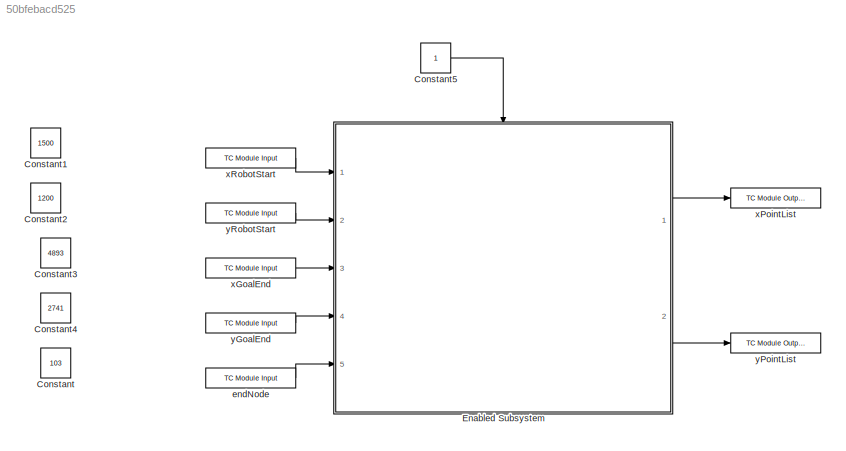
MODEL slx_50bfebacd525
KIND model
CONFIG AbsTol = auto
CONFIG EnableMultiTasking = off
CONFIG FixedStep = 1
CONFIG MaxStep = auto
CONFIG MinStep = auto
CONFIG RelTol = 1e-3
CONFIG SampleTimeConstraint = Unconstrained
CONFIG SolverName = ode1
CONFIG StartTime = 0.0
CONFIG StopTime = inf
BLOCK [Constant] Constant
  Value = 103
BLOCK [Constant] Constant1
  Value = 1500
BLOCK [Constant] Constant2
  Value = 1200
BLOCK [Constant] Constant3
  Value = 4893
BLOCK [Constant] Constant4
  Value = 2741
BLOCK [Constant] Constant5
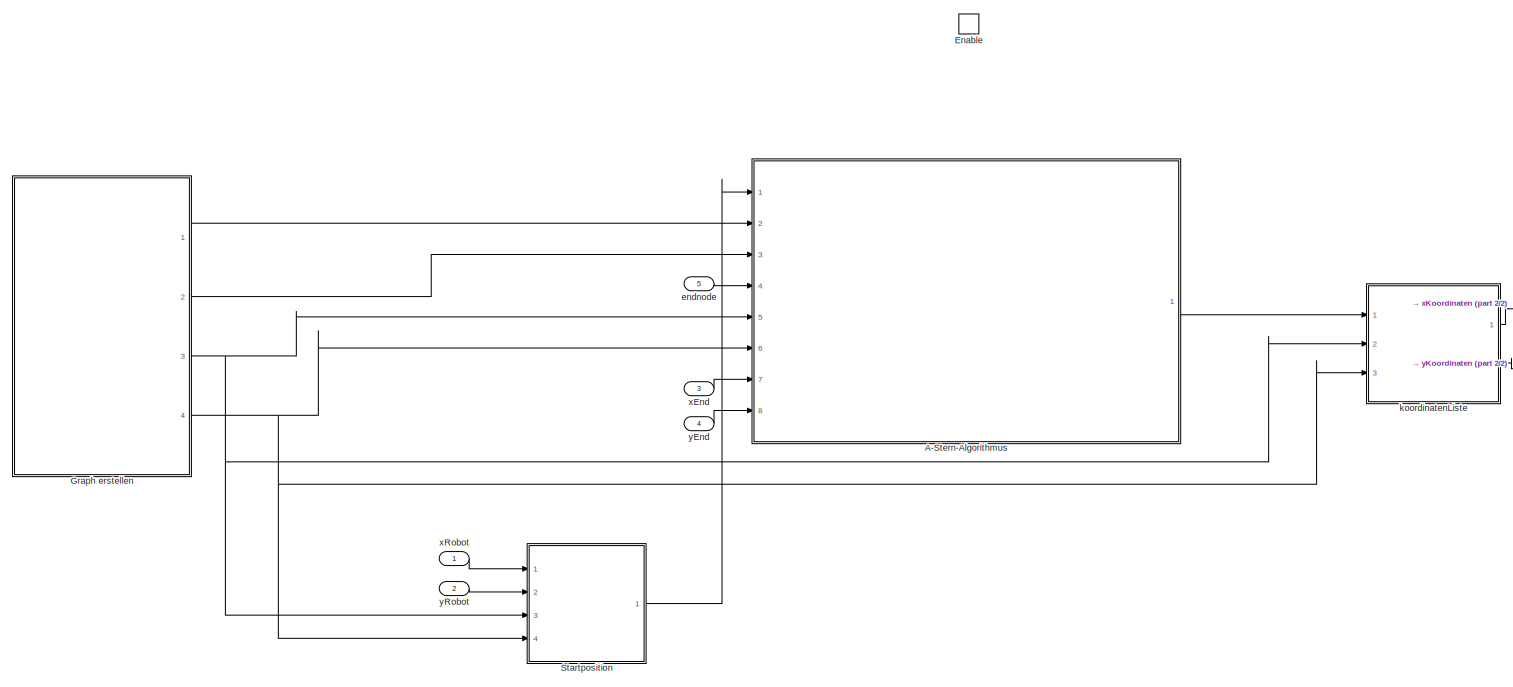
[diagram: Enabled Subsystem - part 1/2, most of the canvas]
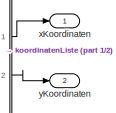
[diagram: Enabled Subsystem - part 2/2, middle right region]
BLOCK [SubSystem] Enabled Subsystem
  Ports = [5, 2, 1]
  RequestExecContextInheritance = off
  TreatAsAtomicUnit = on
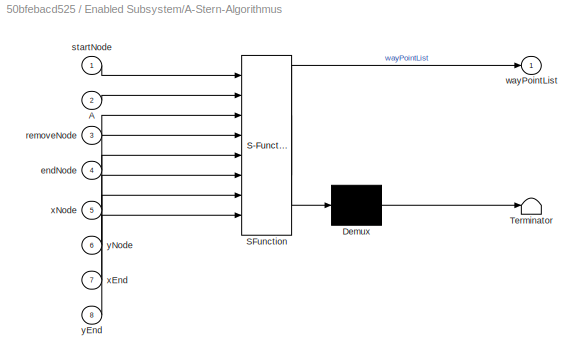
BLOCK [SubSystem] Enabled Subsystem/A-Stern-Algorithmus
  ErrorFcn = Stateflow.Translate.translate
  PermitHierarchicalResolution = ExplicitOnly
  Ports = [8, 1]
  RequestExecContextInheritance = off
  SFBlockType = MATLAB Function
  TreatAsAtomicUnit = on
BLOCK [Demux] Enabled Subsystem/A-Stern-Algorithmus/ Demux 
  Outputs = 1
  Ports = [1, 1]
BLOCK [S-Function] Enabled Subsystem/A-Stern-Algorithmus/ SFunction 
  EnableBusSupport = on
  FunctionName = sf_sfun
  PortCounts = [8 2]
  Ports = [8, 2]
  SFcnIsStateOwnerBlock = off
  SFunctionDeploymentMode = off
  Tag = Stateflow S-Function 2
BLOCK [Terminator] Enabled Subsystem/A-Stern-Algorithmus/ Terminator 
BLOCK [Inport] Enabled Subsystem/A-Stern-Algorithmus/A
  Port = 2
BLOCK [Inport] Enabled Subsystem/A-Stern-Algorithmus/endNode
  Port = 4
BLOCK [Inport] Enabled Subsystem/A-Stern-Algorithmus/removeNode
  Port = 3
BLOCK [Inport] Enabled Subsystem/A-Stern-Algorithmus/startNode
BLOCK [Outport] Enabled Subsystem/A-Stern-Algorithmus/wayPointList
BLOCK [Inport] Enabled Subsystem/A-Stern-Algorithmus/xEnd
  Port = 7
BLOCK [Inport] Enabled Subsystem/A-Stern-Algorithmus/xNode
  Port = 5
BLOCK [Inport] Enabled Subsystem/A-Stern-Algorithmus/yEnd
  Port = 8
BLOCK [Inport] Enabled Subsystem/A-Stern-Algorithmus/yNode
  Port = 6
BLOCK [EnablePort] Enabled Subsystem/Enable
  Ports = []
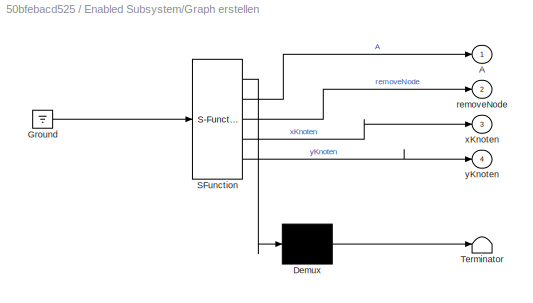
BLOCK [SubSystem] Enabled Subsystem/Graph erstellen
  ErrorFcn = Stateflow.Translate.translate
  PermitHierarchicalResolution = ExplicitOnly
  Ports = [0, 4]
  RequestExecContextInheritance = off
  SFBlockType = MATLAB Function
  TreatAsAtomicUnit = on
BLOCK [Demux] Enabled Subsystem/Graph erstellen/ Demux 
  Outputs = 1
  Ports = [1, 1]
BLOCK [Ground] Enabled Subsystem/Graph erstellen/ Ground 
BLOCK [S-Function] Enabled Subsystem/Graph erstellen/ SFunction 
  EnableBusSupport = on
  FunctionName = sf_sfun
  PortCounts = [1 5]
  Ports = [1, 5]
  SFcnIsStateOwnerBlock = off
  SFunctionDeploymentMode = off
  Tag = Stateflow S-Function 1
BLOCK [Terminator] Enabled Subsystem/Graph erstellen/ Terminator 
BLOCK [Outport] Enabled Subsystem/Graph erstellen/A
BLOCK [Outport] Enabled Subsystem/Graph erstellen/removeNode
  Port = 2
BLOCK [Outport] Enabled Subsystem/Graph erstellen/xKnoten
  Port = 3
BLOCK [Outport] Enabled Subsystem/Graph erstellen/yKnoten
  Port = 4
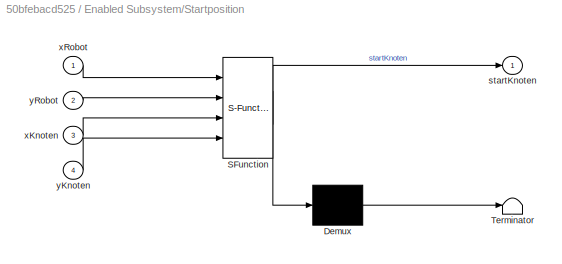
BLOCK [SubSystem] Enabled Subsystem/Startposition
  ErrorFcn = Stateflow.Translate.translate
  PermitHierarchicalResolution = ExplicitOnly
  Ports = [4, 1]
  RequestExecContextInheritance = off
  SFBlockType = MATLAB Function
  TreatAsAtomicUnit = on
BLOCK [Demux] Enabled Subsystem/Startposition/ Demux 
  Outputs = 1
  Ports = [1, 1]
BLOCK [S-Function] Enabled Subsystem/Startposition/ SFunction 
  EnableBusSupport = on
  FunctionName = sf_sfun
  PortCounts = [4 2]
  Ports = [4, 2]
  SFcnIsStateOwnerBlock = off
  SFunctionDeploymentMode = off
  Tag = Stateflow S-Function 3
BLOCK [Terminator] Enabled Subsystem/Startposition/ Terminator 
BLOCK [Outport] Enabled Subsystem/Startposition/startKnoten
BLOCK [Inport] Enabled Subsystem/Startposition/xKnoten
  Port = 3
BLOCK [Inport] Enabled Subsystem/Startposition/xRobot
BLOCK [Inport] Enabled Subsystem/Startposition/yKnoten
  Port = 4
BLOCK [Inport] Enabled Subsystem/Startposition/yRobot
  Port = 2
BLOCK [Inport] Enabled Subsystem/endnode
  Port = 5
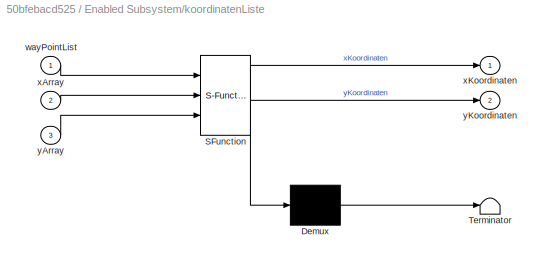
BLOCK [SubSystem] Enabled Subsystem/koordinatenListe
  ErrorFcn = Stateflow.Translate.translate
  PermitHierarchicalResolution = ExplicitOnly
  Ports = [3, 2]
  RequestExecContextInheritance = off
  SFBlockType = MATLAB Function
  TreatAsAtomicUnit = on
BLOCK [Demux] Enabled Subsystem/koordinatenListe/ Demux 
  Outputs = 1
  Ports = [1, 1]
BLOCK [S-Function] Enabled Subsystem/koordinatenListe/ SFunction 
  EnableBusSupport = on
  FunctionName = sf_sfun
  PortCounts = [3 3]
  Ports = [3, 3]
  SFcnIsStateOwnerBlock = off
  SFunctionDeploymentMode = off
  Tag = Stateflow S-Function 4
BLOCK [Terminator] Enabled Subsystem/koordinatenListe/ Terminator 
BLOCK [Inport] Enabled Subsystem/koordinatenListe/wayPointList
BLOCK [Inport] Enabled Subsystem/koordinatenListe/xArray
  Port = 2
BLOCK [Outport] Enabled Subsystem/koordinatenListe/xKoordinaten
BLOCK [Inport] Enabled Subsystem/koordinatenListe/yArray
  Port = 3
BLOCK [Outport] Enabled Subsystem/koordinatenListe/yKoordinaten
  Port = 2
BLOCK [Inport] Enabled Subsystem/xEnd
  Port = 3
BLOCK [Outport] Enabled Subsystem/xKoordinaten
BLOCK [Inport] Enabled Subsystem/xRobot
BLOCK [Inport] Enabled Subsystem/yEnd
  Port = 4
BLOCK [Outport] Enabled Subsystem/yKoordinaten
  Port = 2
BLOCK [Inport] Enabled Subsystem/yRobot
  Port = 2
BLOCK [Reference] endNode  REF=TcTargetLib/TC Module Input
  Ports = [0, 1]
  SourceBlock = TcTargetLib/TC Module Input
  SourceProductName = Beckhoff TwinCAT Target
  SourceType = TC Module Input
BLOCK [Reference] xGoalEnd  REF=TcTargetLib/TC Module Input
  Ports = [0, 1]
  SourceBlock = TcTargetLib/TC Module Input
  SourceProductName = Beckhoff TwinCAT Target
  SourceType = TC Module Input
BLOCK [Reference] xPointList  REF=TcTargetLib/TC Module Output
  Ports = [1]
  SourceBlock = TcTargetLib/TC Module Output
  SourceProductName = Beckhoff TwinCAT Target
  SourceType = TC Module Output
BLOCK [Reference] xRobotStart  REF=TcTargetLib/TC Module Input
  Ports = [0, 1]
  SourceBlock = TcTargetLib/TC Module Input
  SourceProductName = Beckhoff TwinCAT Target
  SourceType = TC Module Input
BLOCK [Reference] yGoalEnd  REF=TcTargetLib/TC Module Input
  Ports = [0, 1]
  SourceBlock = TcTargetLib/TC Module Input
  SourceProductName = Beckhoff TwinCAT Target
  SourceType = TC Module Input
BLOCK [Reference] yPointList  REF=TcTargetLib/TC Module Output
  Ports = [1]
  SourceBlock = TcTargetLib/TC Module Output
  SourceProductName = Beckhoff TwinCAT Target
  SourceType = TC Module Output
BLOCK [Reference] yRobotStart  REF=TcTargetLib/TC Module Input
  Ports = [0, 1]
  SourceBlock = TcTargetLib/TC Module Input
  SourceProductName = Beckhoff TwinCAT Target
  SourceType = TC Module Input
LINE Constant5:1 -> Enabled Subsystem:enable
LINE Enabled Subsystem/A-Stern-Algorithmus:1 -> Enabled Subsystem/koordinatenListe:1
LINE Enabled Subsystem/Graph erstellen:1 -> Enabled Subsystem/A-Stern-Algorithmus:2
LINE Enabled Subsystem/Graph erstellen:2 -> Enabled Subsystem/A-Stern-Algorithmus:3
NET Enabled Subsystem/Graph erstellen:3 -> Enabled Subsystem/A-Stern-Algorithmus:5, Enabled Subsystem/Startposition:3, Enabled Subsystem/koordinatenListe:2
NET Enabled Subsystem/Graph erstellen:4 -> Enabled Subsystem/A-Stern-Algorithmus:6, Enabled Subsystem/Startposition:4, Enabled Subsystem/koordinatenListe:3
LINE Enabled Subsystem/Startposition:1 -> Enabled Subsystem/A-Stern-Algorithmus:1
LINE Enabled Subsystem/endnode:1 -> Enabled Subsystem/A-Stern-Algorithmus:4
LINE Enabled Subsystem/koordinatenListe:1 -> Enabled Subsystem/xKoordinaten:1
LINE Enabled Subsystem/koordinatenListe:2 -> Enabled Subsystem/yKoordinaten:1
LINE Enabled Subsystem/xEnd:1 -> Enabled Subsystem/A-Stern-Algorithmus:7
LINE Enabled Subsystem/xRobot:1 -> Enabled Subsystem/Startposition:1
LINE Enabled Subsystem/yEnd:1 -> Enabled Subsystem/A-Stern-Algorithmus:8
LINE Enabled Subsystem/yRobot:1 -> Enabled Subsystem/Startposition:2
LINE Enabled Subsystem:1 -> xPointList:1
LINE Enabled Subsystem:2 -> yPointList:1
LINE endNode:1 -> Enabled Subsystem:5
LINE xGoalEnd:1 -> Enabled Subsystem:3
LINE xRobotStart:1 -> Enabled Subsystem:1
LINE yGoalEnd:1 -> Enabled Subsystem:4
LINE yRobotStart:1 -> Enabled Subsystem:2
note: NET lines group one-source signal fan-out (src -> all destinations, sorted); 1:1 wires keep LINE
CHART Enabled
Subsystem/Graph erstellen states=1 transitions=1
  STATE_LABEL 'eML_blk_kernel()'
  STATE_LABEL 'SCRIPT:\nfunction [A, removeNode, xKnoten, yKnoten]= fcn\n\nnumberOfNodes = 144;\nnumberOfColumns = 18;\nA = zeros(numberOfNodes);\n\n% Verbindung zu relevanten Knoten\nfor i = 1:numberOfNodes\n    if i-1>0 && mod(i, numberOfColumns) ~= 1\n        A(i-1,i) = 1000;\n    end\n    if i+1<numberOfNodes+1 && mod(i,numberOfColumns) ~= 0\n        A(i+1,i)= 1000;\n    end\n    if i+numberOfColumns<numberOfNodes+1\n      ...<+1150ch>'
CHART Enabled
Subsystem/A-Stern-Algorithmus states=1 transitions=1
  STATE_LABEL 'eML_blk_kernel()'
  STATE_LABEL 'SCRIPT:\nfunction wayPointList = fcn(startNode, A,removeNode, endNode, xNode, yNode, xEnd, yEnd)\nnumNodes = 144;\nopenList = zeros(8,5); %1. Node 2. g(x) 3. h(x) 4. f(x) 5. parent node\nclosedList = zeros(144,5); %1. Node 2. g(x) 3. h(x) 4. f(x) 5. parent node\nneighborList = zeros(8,5); %1. Node 2. g(x) 3. h(x) 4. f(x) 5. parent node\nstep = 1;\nindex = 1;\noverlap = false;\nnodefmin = 0;\ncurrentNode = s...<+3150ch>'
CHART Enabled
Subsystem/Startposition states=1 transitions=1
  STATE_LABEL 'eML_blk_kernel()'
  STATE_LABEL 'SCRIPT:\nfunction startKnoten= fcn(xRobot, yRobot, xKnoten, yKnoten)\n\nstartKnoten = 0;\nstartKnotenArray = 0;\ndiff_x = zeros(size(xKnoten,1),1);\ndiff_y = zeros(size(yKnoten,1),1);\n\nfor i = 1:size(xKnoten,1)\n    diff_x(i) = abs(xRobot-xKnoten(i));\nend\n\nfor i = 1:size(yKnoten,1)\n    diff_y(i) = abs(yRobot-yKnoten(i));\nend\n\nxMin = min(diff_x);\nyMin = min(diff_y);\n\nxStart = find(diff_x == xMin);\nyStart ...<+110ch>'
CHART Enabled
Subsystem/koordinatenListe states=1 transitions=1
  STATE_LABEL 'eML_blk_kernel()'
  STATE_LABEL 'SCRIPT:\nfunction [xKoordinaten, yKoordinaten]= fcn(wayPointList, xArray, yArray)\n\nsizeList = size(wayPointList,1);\nxKoordinaten = zeros(sizeList,1);\nyKoordinaten = zeros(sizeList,1);\n\nfor i = 1 : sizeList\n    if wayPointList ~= 0\n        xKoordinaten(i) = xArray(wayPointList(i));\n        yKoordinaten(i) = yArray(wayPointList(i));\n    end\nend\n\n'
CHART  states=0 transitions=0
CHART  states=0 transitions=0
CHART  states=0 transitions=0
CHART  states=0 transitions=0
